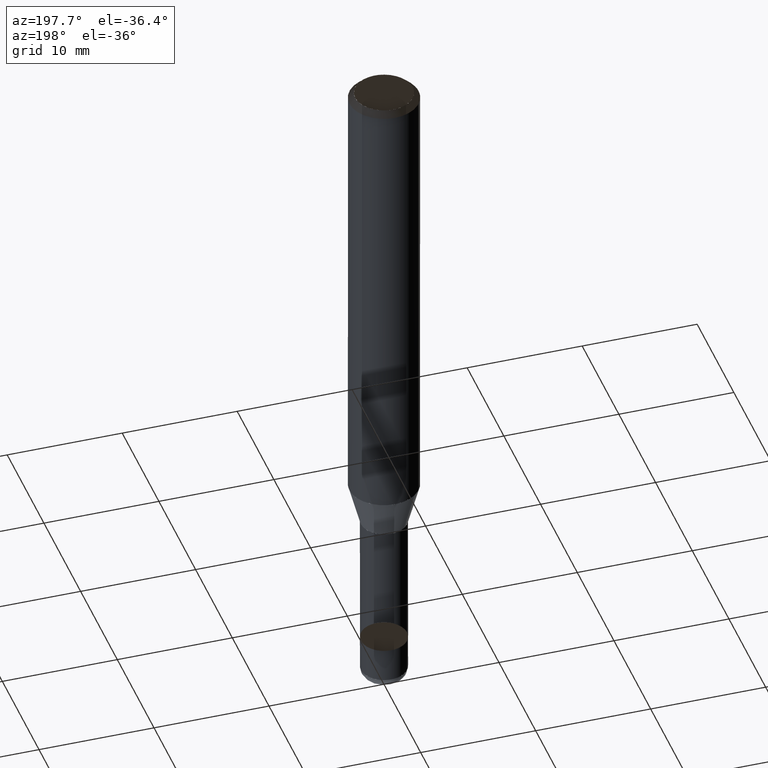
[diagram: clean part render]
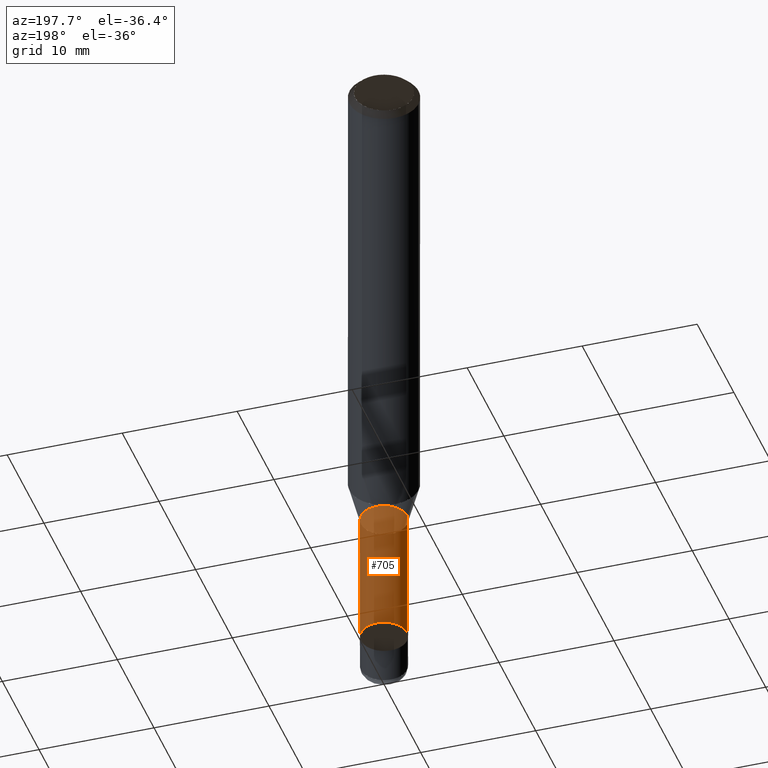
[diagram: same view with one face highlighted and labeled with its STEP entity id]
A machine part, auxiliary view. The second image highlights one B-rep face of the part: STEP entity #705.
In plain terms, the highlighted face is a freeform B-spline surface patch.
Its self-contained STEP definition (entity closure, byte-faithful):
#464=CARTESIAN_POINT('',(2.0,0.0,-15.732050807569));
#465=CARTESIAN_POINT('',(2.0,2.0,-15.732050807569));
#466=CARTESIAN_POINT('',(0.0,2.0,-15.732050807569));
#467=CARTESIAN_POINT('',(-2.0,2.0,-15.732050807569));
#468=CARTESIAN_POINT('',(-2.0,0.0,-15.732050807569));
#482=CARTESIAN_POINT('',(2.0,0.0,-3.732050807569));
#483=CARTESIAN_POINT('',(2.0,2.0,-3.732050807569));
#484=CARTESIAN_POINT('',(0.0,2.0,-3.732050807569));
#485=CARTESIAN_POINT('',(-2.0,2.0,-3.732050807569));
#486=CARTESIAN_POINT('',(-2.0,0.0,-3.732050807569));
#686=(
BOUNDED_SURFACE()
B_SPLINE_SURFACE(1,2,(
(#464,#465,#466,#467,#468),
(#482,#483,#484,#485,#486)
), .UNSPECIFIED.,.F.,.F.,.F.)
B_SPLINE_SURFACE_WITH_KNOTS((2,2),(3,2,3),(
0.0,1.0),(
0.0,0.5,1.0), .UNSPECIFIED.)
GEOMETRIC_REPRESENTATION_ITEM()
RATIONAL_B_SPLINE_SURFACE(((1.0,0.707106781187,1.0,0.707106781187,1.0),
(1.0,0.707106781187,1.0,0.707106781187,1.0)
))
REPRESENTATION_ITEM('')
SURFACE()
);
#687=(
BOUNDED_CURVE()
B_SPLINE_CURVE(2,(#482,#483,#484,#485,#486),.UNSPECIFIED.,.F.,.F.)
B_SPLINE_CURVE_WITH_KNOTS((3,2,3),
(0.0,0.5,1.0),.UNSPECIFIED.)
CURVE()
GEOMETRIC_REPRESENTATION_ITEM()
RATIONAL_B_SPLINE_CURVE((1.0,0.707106781187,1.0,0.707106781187,1.0))
REPRESENTATION_ITEM('')
);
#688=(
BOUNDED_CURVE()
B_SPLINE_CURVE(1,(#486,#468),.UNSPECIFIED.,.F.,.F.)
B_SPLINE_CURVE_WITH_KNOTS((2,2),
(0.0,1.0),.UNSPECIFIED.)
CURVE()
GEOMETRIC_REPRESENTATION_ITEM()
RATIONAL_B_SPLINE_CURVE((1.0,1.0))
REPRESENTATION_ITEM('')
);
#689=(
BOUNDED_CURVE()
B_SPLINE_CURVE(2,(#468,#467,#466,#465,#464),.UNSPECIFIED.,.F.,.F.)
B_SPLINE_CURVE_WITH_KNOTS((3,2,3),
(0.0,0.5,1.0),.UNSPECIFIED.)
CURVE()
GEOMETRIC_REPRESENTATION_ITEM()
RATIONAL_B_SPLINE_CURVE((1.0,0.707106781187,1.0,0.707106781187,1.0))
REPRESENTATION_ITEM('')
);
#690=(
BOUNDED_CURVE()
B_SPLINE_CURVE(1,(#464,#482),.UNSPECIFIED.,.F.,.F.)
B_SPLINE_CURVE_WITH_KNOTS((2,2),
(0.0,1.0),.UNSPECIFIED.)
CURVE()
GEOMETRIC_REPRESENTATION_ITEM()
RATIONAL_B_SPLINE_CURVE((1.0,1.0))
REPRESENTATION_ITEM('')
);
#691=VERTEX_POINT('',#464);
#692=VERTEX_POINT('',#468);
#693=VERTEX_POINT('',#482);
#694=VERTEX_POINT('',#486);
#695=EDGE_CURVE('',#693,#694,#687,.T.);
#696=EDGE_CURVE('',#694,#692,#688,.T.);
#697=EDGE_CURVE('',#692,#691,#689,.T.);
#698=EDGE_CURVE('',#691,#693,#690,.T.);
#699=ORIENTED_EDGE('',*,*,#695,.T.);
#700=ORIENTED_EDGE('',*,*,#696,.T.);
#701=ORIENTED_EDGE('',*,*,#697,.T.);
#702=ORIENTED_EDGE('',*,*,#698,.T.);
#703=EDGE_LOOP('',(#699,#700,#701,#702));
#704=FACE_OUTER_BOUND('',#703,.T.);
#705=ADVANCED_FACE('',(#704),#686,.T.);